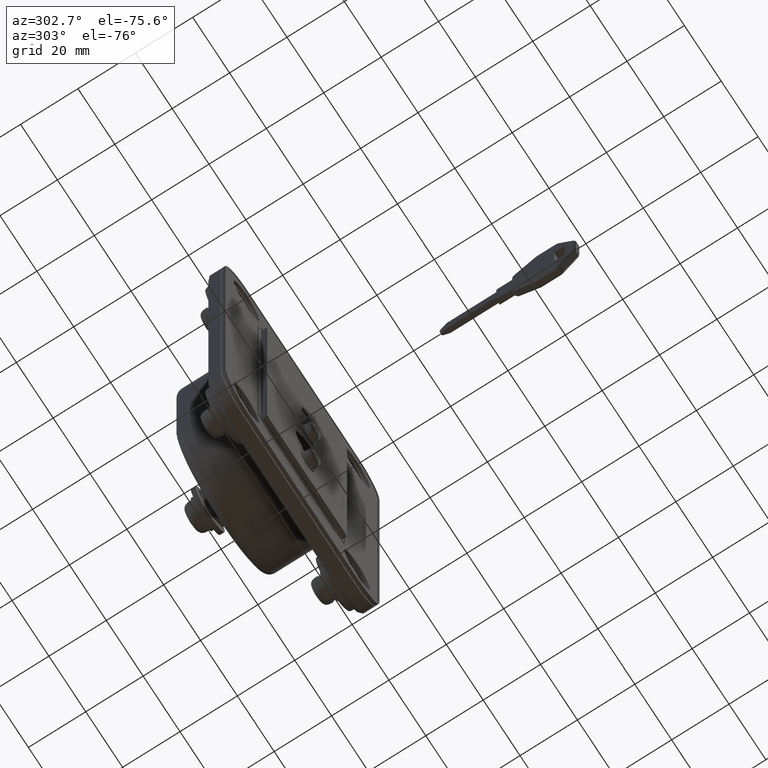
[diagram: clean part render]
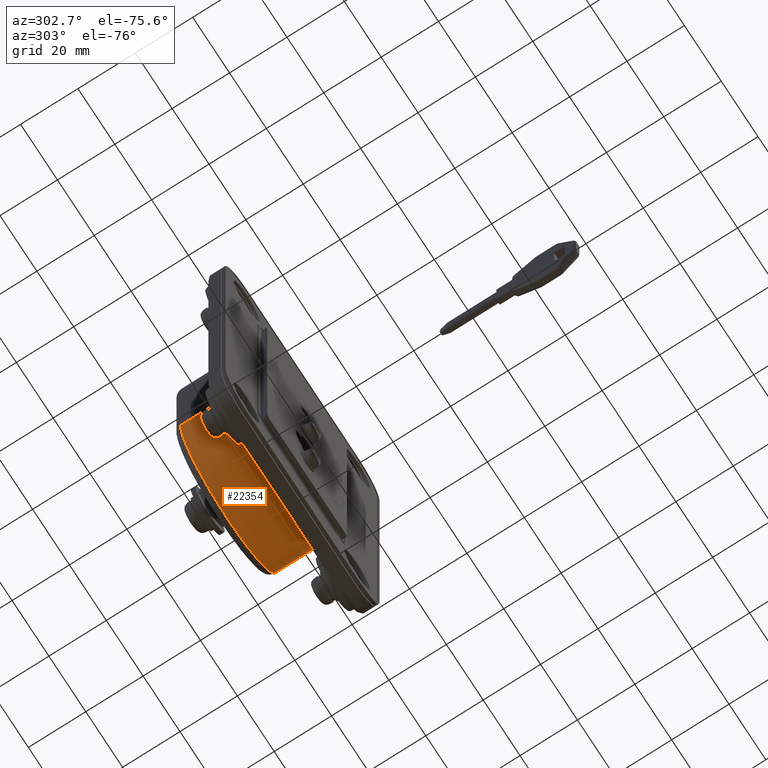
[diagram: same view with one face highlighted and labeled with its STEP entity id]
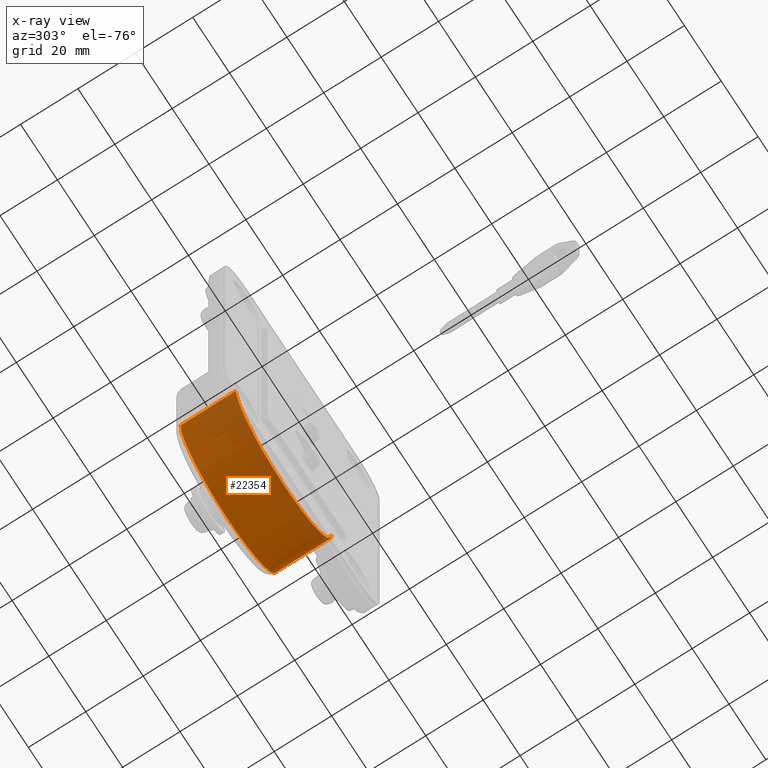
[diagram: x-ray of the same camera — body ghosted, the highlighted face saturated]
A machine part, auxiliary view. The second image highlights one B-rep face of the part: STEP entity #22354.
The next image is the same camera in x-ray: the body ghosted, the highlighted face saturated — about 29% of this face is hidden behind the body in this view.
In plain terms, the highlighted face is a freeform B-spline surface patch.
Its self-contained STEP definition (entity closure, byte-faithful):
#22017=CARTESIAN_POINT('',(-2.499999999999945,-25.999999999939401,8.020435E-012));
#22018=VERTEX_POINT('',#22017);
#22032=CARTESIAN_POINT('',(-2.499999999999945,26.000000000074099,1.560426E-011));
#22033=VERTEX_POINT('',#22032);
#22034=CARTESIAN_POINT('',(-2.499999999999945,26.000000000074099,1.561062E-011));
#22035=CARTESIAN_POINT('',(-2.499999999999945,26.000000000074095,-25.999999999987391));
#22036=CARTESIAN_POINT('',(-2.499999999999945,7.109298E-011,-25.999999999991189));
#22037=CARTESIAN_POINT('',(-2.499999999999945,-25.999999999931898,-25.999999999994984));
#22038=CARTESIAN_POINT('',(-2.499999999999945,-25.999999999939490,8.008370E-012));
#22046=(BOUNDED_CURVE()B_SPLINE_CURVE(2,(#22034,#22035,#22036,#22037,#22038),.UNSPECIFIED.,.F.,.U.)B_SPLINE_CURVE_WITH_KNOTS((3,2,3),(0.0,0.500000000000000,1.0),.UNSPECIFIED.)CURVE()GEOMETRIC_REPRESENTATION_ITEM()RATIONAL_B_SPLINE_CURVE((1.0,0.707106781186599,1.0,0.707106781186599,1.0))REPRESENTATION_ITEM(''));
#22047=EDGE_CURVE('',#22033,#22018,#22046,.T.);
#22268=CARTESIAN_POINT('',(-21.899999996982199,26.000000000074099,1.560426E-011));
#22269=VERTEX_POINT('',#22268);
#22275=CARTESIAN_POINT('',(-21.899999996982199,-25.999999999939401,8.020435E-012));
#22276=VERTEX_POINT('',#22275);
#22277=CARTESIAN_POINT('',(-21.899999996982199,-25.999999999939490,8.014738E-012));
#22278=CARTESIAN_POINT('',(-21.899999996982206,-25.999999999931909,-25.999999999994994));
#22279=CARTESIAN_POINT('',(-21.899999996982199,7.109816E-011,-25.999999999991189));
#22280=CARTESIAN_POINT('',(-21.899999996982206,26.000000000074106,-25.999999999987402));
#22281=CARTESIAN_POINT('',(-21.899999996982199,26.000000000074099,1.561062E-011));
#22289=(BOUNDED_CURVE()B_SPLINE_CURVE(2,(#22277,#22278,#22279,#22280,#22281),.UNSPECIFIED.,.F.,.U.)B_SPLINE_CURVE_WITH_KNOTS((3,2,3),(0.0,0.500000000000000,1.0),.UNSPECIFIED.)CURVE()GEOMETRIC_REPRESENTATION_ITEM()RATIONAL_B_SPLINE_CURVE((1.0,0.707106781186599,1.0,0.707106781186599,1.0))REPRESENTATION_ITEM(''));
#22290=EDGE_CURVE('',#22276,#22269,#22289,.T.);
#22317=CARTESIAN_POINT('',(-21.899999996982199,26.000000000074099,1.560426E-011));
#22318=CARTESIAN_POINT('',(-2.499999999999945,26.000000000074099,1.560426E-011));
#22319=QUASI_UNIFORM_CURVE('',1,(#22317,#22318),.UNSPECIFIED.,.F.,.U.);
#22320=EDGE_CURVE('',#22269,#22033,#22319,.T.);
#22326=CARTESIAN_POINT('',(-22.384999996906760,25.991090449438381,0.680600656028115));
#22327=CARTESIAN_POINT('',(-2.002875000077271,25.991090449438381,0.680600656028115));
#22328=CARTESIAN_POINT('',(-22.384999996906764,26.708293893997542,-26.708293893898961));
#22329=CARTESIAN_POINT('',(-2.002875000077270,26.708293893997542,-26.708293893898961));
#22330=CARTESIAN_POINT('',(-22.384999996906760,-0.680600655929950,-25.991090449355859));
#22331=CARTESIAN_POINT('',(-2.002875000077271,-0.680600655929950,-25.991090449355859));
#22332=CARTESIAN_POINT('',(-22.384999996906764,-28.069495205857439,-25.273887004812771));
#22333=CARTESIAN_POINT('',(-2.002875000077270,-28.069495205857439,-25.273887004812771));
#22334=CARTESIAN_POINT('',(-22.384999996906760,-25.919850677001389,2.039936488932502));
#22335=CARTESIAN_POINT('',(-2.002875000077271,-25.919850677001389,2.039936488932502));
#22343=(BOUNDED_SURFACE()B_SPLINE_SURFACE(1,2,((#22326,#22328,#22330,#22332,#22334),(#22327,#22329,#22331,#22333,#22335)),.UNSPECIFIED.,.F.,.F.,.U.)B_SPLINE_SURFACE_WITH_KNOTS((2,2),(3,2,3),(0.0,20.382124996829500),(0.0,44.681926220562609,89.363852441125218),.UNSPECIFIED.)GEOMETRIC_REPRESENTATION_ITEM()RATIONAL_B_SPLINE_SURFACE(((1.0,0.688354575693754,1.0,0.688354575693754,1.0),(1.0,0.688354575693754,1.0,0.688354575693754,1.0)))REPRESENTATION_ITEM('')SURFACE());
#22344=ORIENTED_EDGE('',*,*,#22320,.T.);
#22345=ORIENTED_EDGE('',*,*,#22047,.T.);
#22346=CARTESIAN_POINT('',(-21.899999996982199,-25.999999999939401,8.020435E-012));
#22347=CARTESIAN_POINT('',(-2.499999999999945,-25.999999999939401,8.020435E-012));
#22348=QUASI_UNIFORM_CURVE('',1,(#22346,#22347),.UNSPECIFIED.,.F.,.U.);
#22349=EDGE_CURVE('',#22276,#22018,#22348,.T.);
#22350=ORIENTED_EDGE('',*,*,#22349,.F.);
#22351=ORIENTED_EDGE('',*,*,#22290,.T.);
#22352=EDGE_LOOP('',(#22344,#22345,#22350,#22351));
#22353=FACE_OUTER_BOUND('',#22352,.T.);
#22354=ADVANCED_FACE('',(#22353),#22343,.T.);